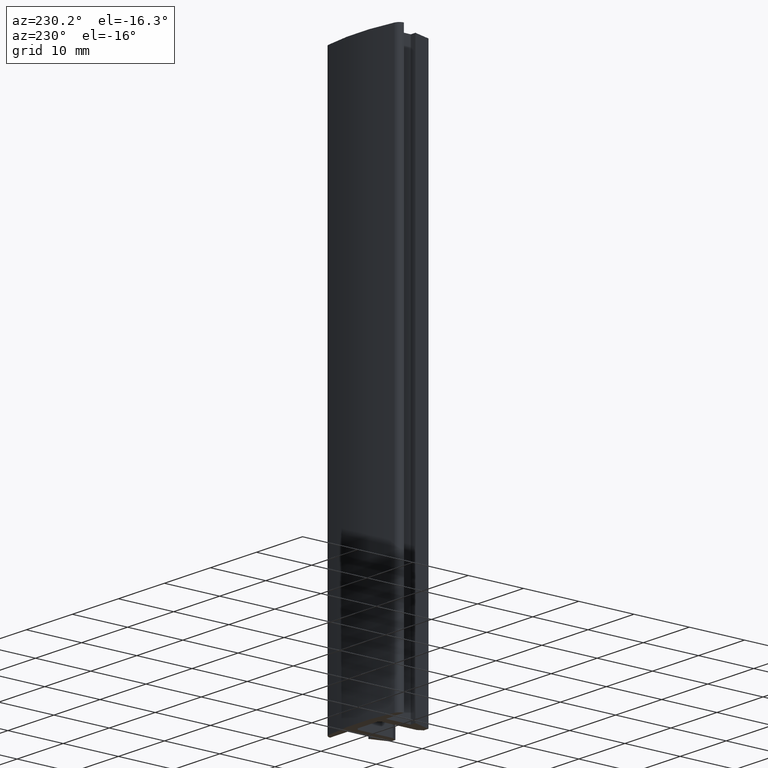
[diagram: clean part render]
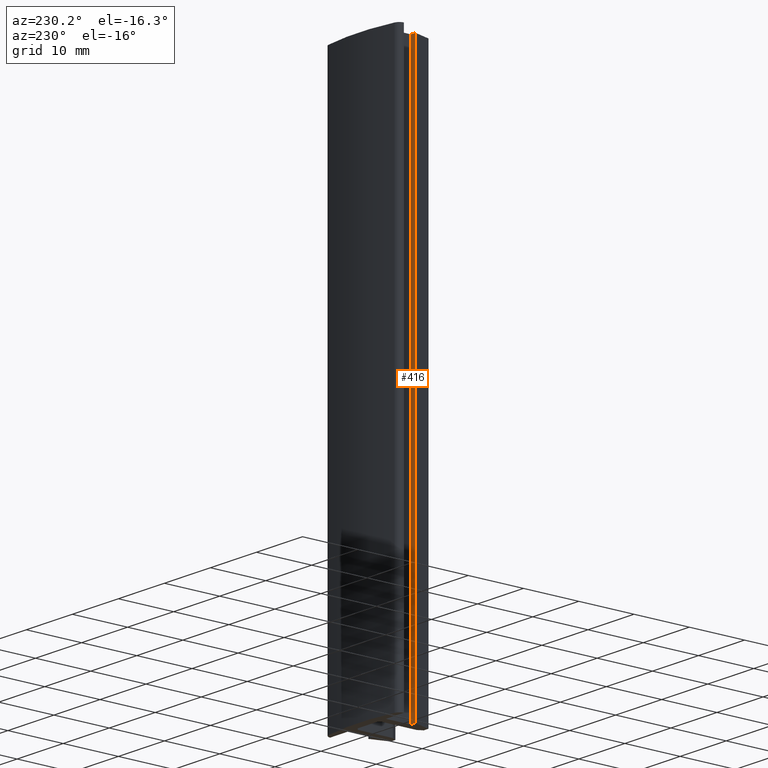
[diagram: same view with one face highlighted and labeled with its STEP entity id]
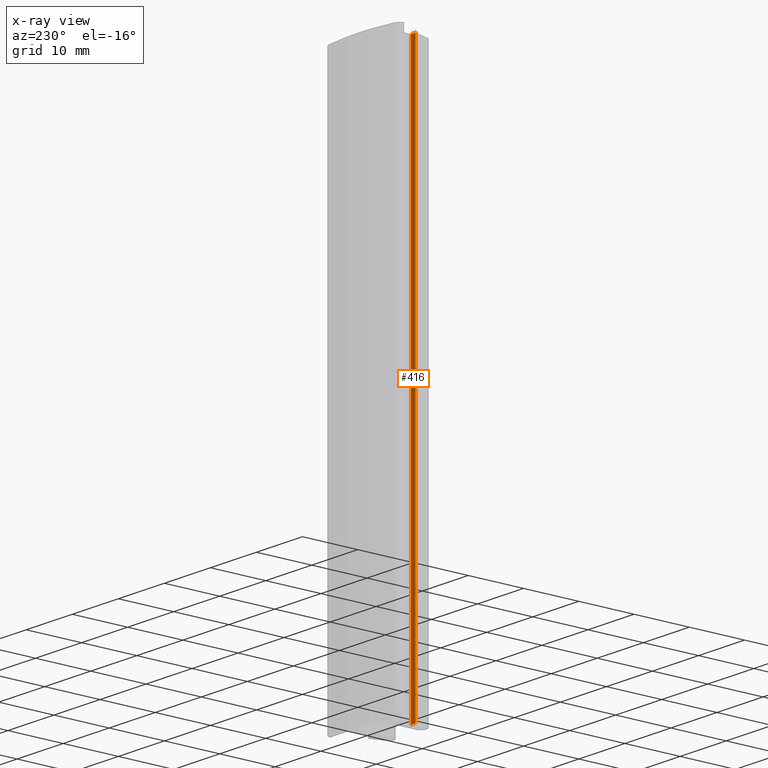
[diagram: x-ray of the same camera — body ghosted, the highlighted face saturated]
A machine part, auxiliary view. The second image highlights one B-rep face of the part: STEP entity #416.
The next image is the same camera in x-ray: the body ghosted, the highlighted face saturated — about 0% of this face is hidden behind the body in this view.
In plain terms, the highlighted planar face has unit normal (-0, 1, 0).
Its self-contained STEP definition (entity closure, byte-faithful):
#25=FACE_OUTER_BOUND('',#47,.T.);
#47=EDGE_LOOP('',(#280,#281,#282,#283));
#71=LINE('',#606,#125);
#72=LINE('',#609,#126);
#73=LINE('',#611,#127);
#74=LINE('',#612,#128);
#125=VECTOR('',#492,10.);
#126=VECTOR('',#495,10.);
#127=VECTOR('',#496,10.);
#128=VECTOR('',#497,10.);
#176=VERTEX_POINT('',#599);
#179=VERTEX_POINT('',#604);
#180=VERTEX_POINT('',#608);
#181=VERTEX_POINT('',#610);
#219=EDGE_CURVE('',#176,#179,#71,.T.);
#220=EDGE_CURVE('',#180,#176,#72,.T.);
#221=EDGE_CURVE('',#181,#179,#73,.T.);
#222=EDGE_CURVE('',#180,#181,#74,.T.);
#280=ORIENTED_EDGE('',*,*,#220,.T.);
#281=ORIENTED_EDGE('',*,*,#219,.T.);
#282=ORIENTED_EDGE('',*,*,#221,.F.);
#283=ORIENTED_EDGE('',*,*,#222,.F.);
#397=PLANE('',#458);
#416=ADVANCED_FACE('',(#25),#397,.T.);
#458=AXIS2_PLACEMENT_3D('',#607,#493,#494);
#492=DIRECTION('',(0.,0.,1.));
#493=DIRECTION('center_axis',(-1.66533453693774E-15,1.,0.));
#494=DIRECTION('ref_axis',(-1.,-1.66533453693774E-15,0.));
#495=DIRECTION('',(-1.,-1.66533453693774E-15,0.));
#496=DIRECTION('',(-1.,-1.66533453693774E-15,0.));
#497=DIRECTION('',(0.,0.,1.));
#599=CARTESIAN_POINT('',(-5.1,-4.5,0.));
#604=CARTESIAN_POINT('',(-5.1,-4.5,100.));
#606=CARTESIAN_POINT('',(-5.1,-4.5,0.));
#607=CARTESIAN_POINT('Origin',(-4.1,-4.5,0.));
#608=CARTESIAN_POINT('',(-4.1,-4.5,0.));
#609=CARTESIAN_POINT('',(-4.1,-4.5,0.));
#610=CARTESIAN_POINT('',(-4.1,-4.5,100.));
#611=CARTESIAN_POINT('',(-4.1,-4.5,100.));
#612=CARTESIAN_POINT('',(-4.1,-4.5,0.));